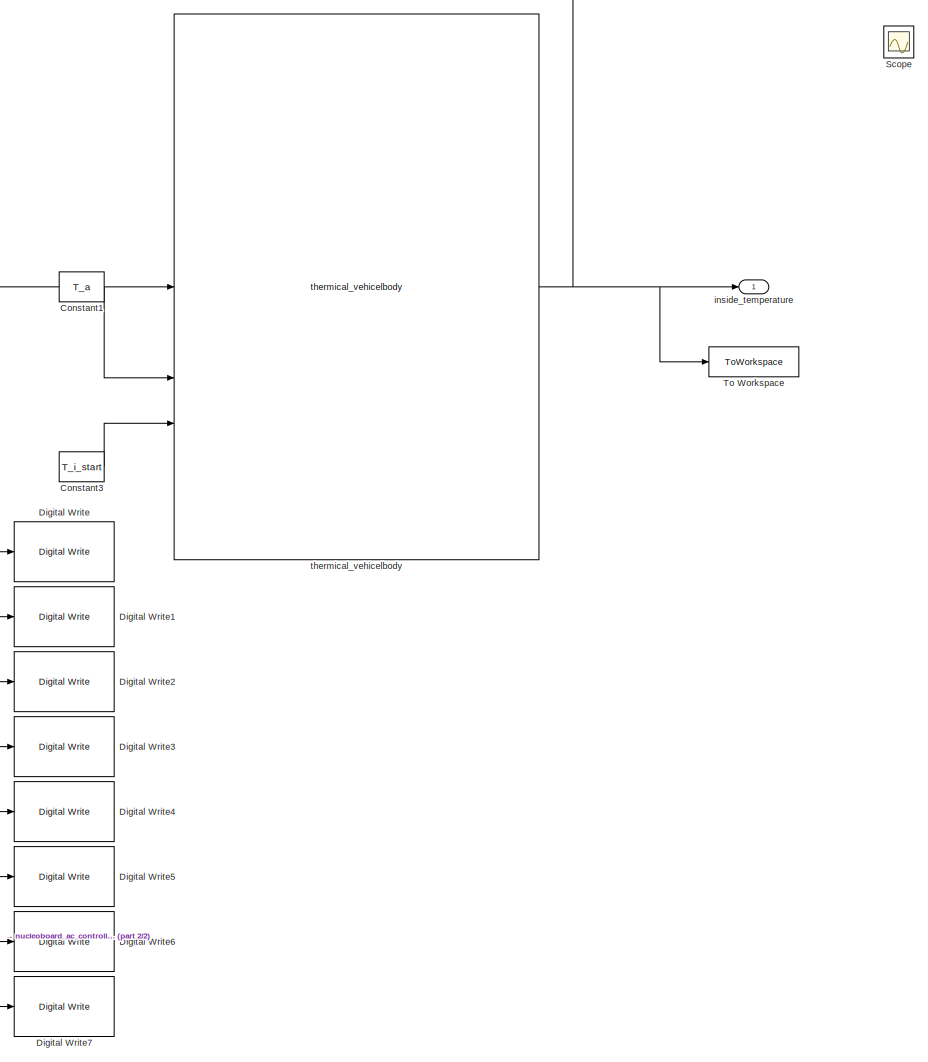
[diagram: root canvas - part 1/2, right side, full height]
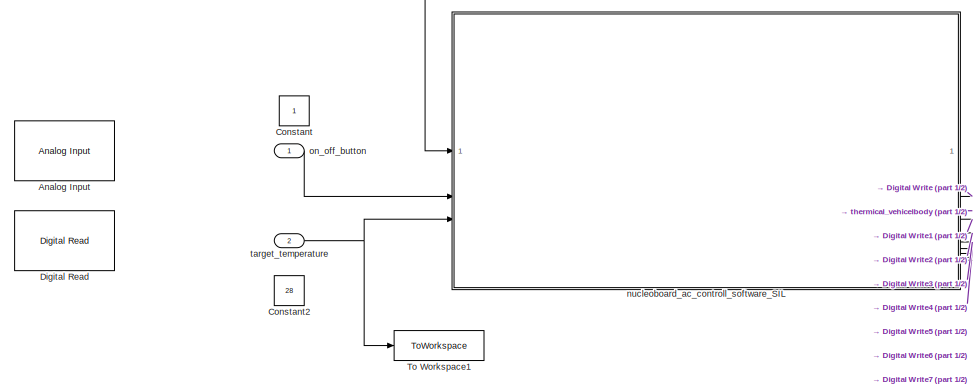
[diagram: root canvas - part 2/2, top left region]
MODEL slx_5eb0355fa3ac
KIND model
CONFIG AbsTol = auto
CONFIG EnableMultiTasking = off
CONFIG FixedStep = auto
CONFIG MaxStep = auto
CONFIG MinStep = auto
CONFIG RelTol = 1e-3
CONFIG SampleTimeConstraint = Unconstrained
CONFIG SolverName = FixedStepAuto
CONFIG StartTime = 0.0
CONFIG StopTime = 10.0
BLOCK [Reference] Analog Input  REF=mbedblockslib/Analog Input
  Commented = on
  LibrarySourceBlock = stmnucleorootlib/Common/Analog Input
  SourceBlock = mbedblockslib/Analog Input
  SourceType = mbed.AnalogInput
BLOCK [Constant] Constant
  Commented = on
  OutDataTypeStr = boolean
BLOCK [Constant] Constant1
  Value = T_a
BLOCK [Constant] Constant2
  Commented = on
  OutDataTypeStr = uint16
  Value = 28
BLOCK [Constant] Constant3
  Value = T_i_start
BLOCK [Reference] Digital Read  REF=mbedblockslib/Digital Read
  Commented = on
  LibrarySourceBlock = stmnucleorootlib/Common/Digital Read
  SourceBlock = mbedblockslib/Digital Read
  SourceType = mbed.DigitalRead
BLOCK [Reference] Digital Write  REF=mbedblockslib/Digital Write
  LibrarySourceBlock = stmnucleorootlib/Common/Digital Write
  SourceBlock = mbedblockslib/Digital Write
  SourceType = mbed.DigitalWrite
BLOCK [Reference] Digital Write1  REF=mbedblockslib/Digital Write
  LibrarySourceBlock = stmnucleorootlib/Common/Digital Write
  SourceBlock = mbedblockslib/Digital Write
  SourceType = mbed.DigitalWrite
BLOCK [Reference] Digital Write2  REF=mbedblockslib/Digital Write
  LibrarySourceBlock = stmnucleorootlib/Common/Digital Write
  SourceBlock = mbedblockslib/Digital Write
  SourceType = mbed.DigitalWrite
BLOCK [Reference] Digital Write3  REF=mbedblockslib/Digital Write
  LibrarySourceBlock = stmnucleorootlib/Common/Digital Write
  SourceBlock = mbedblockslib/Digital Write
  SourceType = mbed.DigitalWrite
BLOCK [Reference] Digital Write4  REF=mbedblockslib/Digital Write
  LibrarySourceBlock = stmnucleorootlib/Common/Digital Write
  SourceBlock = mbedblockslib/Digital Write
  SourceType = mbed.DigitalWrite
BLOCK [Reference] Digital Write5  REF=mbedblockslib/Digital Write
  LibrarySourceBlock = stmnucleorootlib/Common/Digital Write
  SourceBlock = mbedblockslib/Digital Write
  SourceType = mbed.DigitalWrite
BLOCK [Reference] Digital Write6  REF=mbedblockslib/Digital Write
  LibrarySourceBlock = stmnucleorootlib/Common/Digital Write
  SourceBlock = mbedblockslib/Digital Write
  SourceType = mbed.DigitalWrite
BLOCK [Reference] Digital Write7  REF=mbedblockslib/Digital Write
  LibrarySourceBlock = stmnucleorootlib/Common/Digital Write
  SourceBlock = mbedblockslib/Digital Write
  SourceType = mbed.DigitalWrite
BLOCK [Scope] Scope
  Commented = on
  Floating = off
  NumInputPorts = 1
  ScopeSpecificationString = Simulink.scopes.TimeScopeBlockCfg('CurrentConfiguration', extmgr.ConfigurationSet(extmgr.Configuration('Core','General UI',true),extmgr.Configuration('Core','Source UI',true),extmgr.Configuration('Sources','WiredSimulink',true),extmgr.Configuration('Visuals','Time Domain',true,'SerializedDisplays',{struct('MinYLimReal','-1.80843','MaxYLimReal','16.8604','YLabelReal','','MinYLimMag','0.00000','MaxY...<+1397ch>
BLOCK [ToWorkspace] To Workspace
  FixptAsFi = on
  MaxDataPoints = inf
  SampleTime = -1
  SaveFormat = Timeseries
  VariableName = inside_tmp
BLOCK [ToWorkspace] To Workspace1
  FixptAsFi = on
  MaxDataPoints = inf
  SampleTime = -1
  SaveFormat = Timeseries
  VariableName = target_tmp
BLOCK [Outport] inside_temperature
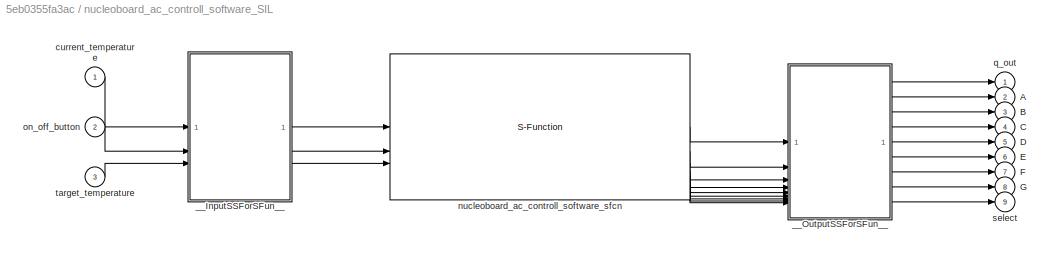
BLOCK [SubSystem] nucleoboard_ac_controll_software_SIL
BLOCK [Outport] nucleoboard_ac_controll_software_SIL/A
  Port = 2
BLOCK [Outport] nucleoboard_ac_controll_software_SIL/B
  Port = 3
BLOCK [Outport] nucleoboard_ac_controll_software_SIL/C
  Port = 4
BLOCK [Outport] nucleoboard_ac_controll_software_SIL/D
  Port = 5
BLOCK [Outport] nucleoboard_ac_controll_software_SIL/E
  Port = 6
BLOCK [Outport] nucleoboard_ac_controll_software_SIL/F
  Port = 7
BLOCK [Outport] nucleoboard_ac_controll_software_SIL/G
  Port = 8
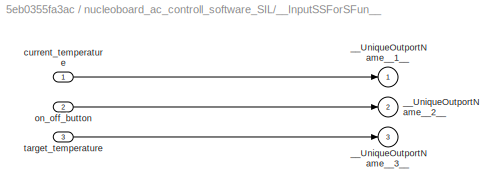
BLOCK [SubSystem] nucleoboard_ac_controll_software_SIL/__InputSSForSFun__
  PermitHierarchicalResolution = ExplicitOnly
BLOCK [Outport] nucleoboard_ac_controll_software_SIL/__InputSSForSFun__/__UniqueOutportName__1__
BLOCK [Outport] nucleoboard_ac_controll_software_SIL/__InputSSForSFun__/__UniqueOutportName__2__
  Port = 2
BLOCK [Outport] nucleoboard_ac_controll_software_SIL/__InputSSForSFun__/__UniqueOutportName__3__
  Port = 3
BLOCK [Inport] nucleoboard_ac_controll_software_SIL/__InputSSForSFun__/current_temperature
BLOCK [Inport] nucleoboard_ac_controll_software_SIL/__InputSSForSFun__/on_off_button
  Port = 2
BLOCK [Inport] nucleoboard_ac_controll_software_SIL/__InputSSForSFun__/target_temperature
  Port = 3
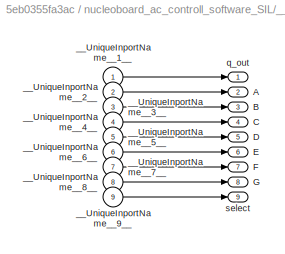
BLOCK [SubSystem] nucleoboard_ac_controll_software_SIL/__OutputSSForSFun__
  PermitHierarchicalResolution = ExplicitOnly
BLOCK [Outport] nucleoboard_ac_controll_software_SIL/__OutputSSForSFun__/A
  Port = 2
BLOCK [Outport] nucleoboard_ac_controll_software_SIL/__OutputSSForSFun__/B
  Port = 3
BLOCK [Outport] nucleoboard_ac_controll_software_SIL/__OutputSSForSFun__/C
  Port = 4
BLOCK [Outport] nucleoboard_ac_controll_software_SIL/__OutputSSForSFun__/D
  Port = 5
BLOCK [Outport] nucleoboard_ac_controll_software_SIL/__OutputSSForSFun__/E
  Port = 6
BLOCK [Outport] nucleoboard_ac_controll_software_SIL/__OutputSSForSFun__/F
  Port = 7
BLOCK [Outport] nucleoboard_ac_controll_software_SIL/__OutputSSForSFun__/G
  Port = 8
BLOCK [Inport] nucleoboard_ac_controll_software_SIL/__OutputSSForSFun__/__UniqueInportName__1__
BLOCK [Inport] nucleoboard_ac_controll_software_SIL/__OutputSSForSFun__/__UniqueInportName__2__
  Port = 2
BLOCK [Inport] nucleoboard_ac_controll_software_SIL/__OutputSSForSFun__/__UniqueInportName__3__
  Port = 3
BLOCK [Inport] nucleoboard_ac_controll_software_SIL/__OutputSSForSFun__/__UniqueInportName__4__
  Port = 4
BLOCK [Inport] nucleoboard_ac_controll_software_SIL/__OutputSSForSFun__/__UniqueInportName__5__
  Port = 5
BLOCK [Inport] nucleoboard_ac_controll_software_SIL/__OutputSSForSFun__/__UniqueInportName__6__
  Port = 6
BLOCK [Inport] nucleoboard_ac_controll_software_SIL/__OutputSSForSFun__/__UniqueInportName__7__
  Port = 7
BLOCK [Inport] nucleoboard_ac_controll_software_SIL/__OutputSSForSFun__/__UniqueInportName__8__
  Port = 8
BLOCK [Inport] nucleoboard_ac_controll_software_SIL/__OutputSSForSFun__/__UniqueInportName__9__
  Port = 9
BLOCK [Outport] nucleoboard_ac_controll_software_SIL/__OutputSSForSFun__/q_out
BLOCK [Outport] nucleoboard_ac_controll_software_SIL/__OutputSSForSFun__/select
  Port = 9
BLOCK [Inport] nucleoboard_ac_controll_software_SIL/current_temperature
BLOCK [S-Function] nucleoboard_ac_controll_software_SIL/nucleoboard_ac_controll_software_sfcn
  CopyFcn = if ~strcmp(get_param(gcb,'Linkstatus'),'none') && ...\n~strcmp(get_param(gcb,'Linkstatus'),'implicit')      \n  set_param(gcb,'LinkStatus','none');                \nend
  EnableBusSupport = off
  FunctionName = nucleoboard_ac_controll_softwar_sf
  SFcnIsStateOwnerBlock = on
  SFcnStateName = DWORK0
  SFunctionDeploymentMode = off
BLOCK [Inport] nucleoboard_ac_controll_software_SIL/on_off_button
  Port = 2
BLOCK [Outport] nucleoboard_ac_controll_software_SIL/q_out
BLOCK [Outport] nucleoboard_ac_controll_software_SIL/select
  Port = 9
BLOCK [Inport] nucleoboard_ac_controll_software_SIL/target_temperature
  Port = 3
BLOCK [Inport] on_off_button
  OutDataTypeStr = boolean
BLOCK [Inport] target_temperature
  Port = 2
BLOCK [Reference] thermical_vehicelbody  REF=thermical_vehicelbody/thermical_vehicelbody  (lib defined in slx_e5d466674b51)
  SourceBlock = thermical_vehicelbody/thermical_vehicelbody
  SourceType = SubSystem
LINE Constant1:1 -> thermical_vehicelbody:2
LINE Constant3:1 -> thermical_vehicelbody:3
LINE nucleoboard_ac_controll_software_SIL/__InputSSForSFun__/current_temperature:1 -> nucleoboard_ac_controll_software_SIL/__InputSSForSFun__/__UniqueOutportName__1__:1
LINE nucleoboard_ac_controll_software_SIL/__InputSSForSFun__/on_off_button:1 -> nucleoboard_ac_controll_software_SIL/__InputSSForSFun__/__UniqueOutportName__2__:1
LINE nucleoboard_ac_controll_software_SIL/__InputSSForSFun__/target_temperature:1 -> nucleoboard_ac_controll_software_SIL/__InputSSForSFun__/__UniqueOutportName__3__:1
LINE nucleoboard_ac_controll_software_SIL/__InputSSForSFun__:1 -> nucleoboard_ac_controll_software_SIL/nucleoboard_ac_controll_software_sfcn:1
LINE nucleoboard_ac_controll_software_SIL/__InputSSForSFun__:2 -> nucleoboard_ac_controll_software_SIL/nucleoboard_ac_controll_software_sfcn:2
LINE nucleoboard_ac_controll_software_SIL/__InputSSForSFun__:3 -> nucleoboard_ac_controll_software_SIL/nucleoboard_ac_controll_software_sfcn:3
LINE nucleoboard_ac_controll_software_SIL/__OutputSSForSFun__/__UniqueInportName__1__:1 -> nucleoboard_ac_controll_software_SIL/__OutputSSForSFun__/q_out:1
LINE nucleoboard_ac_controll_software_SIL/__OutputSSForSFun__/__UniqueInportName__2__:1 -> nucleoboard_ac_controll_software_SIL/__OutputSSForSFun__/A:1
LINE nucleoboard_ac_controll_software_SIL/__OutputSSForSFun__/__UniqueInportName__3__:1 -> nucleoboard_ac_controll_software_SIL/__OutputSSForSFun__/B:1
LINE nucleoboard_ac_controll_software_SIL/__OutputSSForSFun__/__UniqueInportName__4__:1 -> nucleoboard_ac_controll_software_SIL/__OutputSSForSFun__/C:1
LINE nucleoboard_ac_controll_software_SIL/__OutputSSForSFun__/__UniqueInportName__5__:1 -> nucleoboard_ac_controll_software_SIL/__OutputSSForSFun__/D:1
LINE nucleoboard_ac_controll_software_SIL/__OutputSSForSFun__/__UniqueInportName__6__:1 -> nucleoboard_ac_controll_software_SIL/__OutputSSForSFun__/E:1
LINE nucleoboard_ac_controll_software_SIL/__OutputSSForSFun__/__UniqueInportName__7__:1 -> nucleoboard_ac_controll_software_SIL/__OutputSSForSFun__/F:1
LINE nucleoboard_ac_controll_software_SIL/__OutputSSForSFun__/__UniqueInportName__8__:1 -> nucleoboard_ac_controll_software_SIL/__OutputSSForSFun__/G:1
LINE nucleoboard_ac_controll_software_SIL/__OutputSSForSFun__/__UniqueInportName__9__:1 -> nucleoboard_ac_controll_software_SIL/__OutputSSForSFun__/select:1
LINE nucleoboard_ac_controll_software_SIL/__OutputSSForSFun__:1 -> nucleoboard_ac_controll_software_SIL/q_out:1
LINE nucleoboard_ac_controll_software_SIL/__OutputSSForSFun__:2 -> nucleoboard_ac_controll_software_SIL/A:1
LINE nucleoboard_ac_controll_software_SIL/__OutputSSForSFun__:3 -> nucleoboard_ac_controll_software_SIL/B:1
LINE nucleoboard_ac_controll_software_SIL/__OutputSSForSFun__:4 -> nucleoboard_ac_controll_software_SIL/C:1
LINE nucleoboard_ac_controll_software_SIL/__OutputSSForSFun__:5 -> nucleoboard_ac_controll_software_SIL/D:1
LINE nucleoboard_ac_controll_software_SIL/__OutputSSForSFun__:6 -> nucleoboard_ac_controll_software_SIL/E:1
LINE nucleoboard_ac_controll_software_SIL/__OutputSSForSFun__:7 -> nucleoboard_ac_controll_software_SIL/F:1
LINE nucleoboard_ac_controll_software_SIL/__OutputSSForSFun__:8 -> nucleoboard_ac_controll_software_SIL/G:1
LINE nucleoboard_ac_controll_software_SIL/__OutputSSForSFun__:9 -> nucleoboard_ac_controll_software_SIL/select:1
LINE nucleoboard_ac_controll_software_SIL/current_temperature:1 -> nucleoboard_ac_controll_software_SIL/__InputSSForSFun__:1
LINE nucleoboard_ac_controll_software_SIL/nucleoboard_ac_controll_software_sfcn:1 -> nucleoboard_ac_controll_software_SIL/__OutputSSForSFun__:1
LINE nucleoboard_ac_controll_software_SIL/nucleoboard_ac_controll_software_sfcn:2 -> nucleoboard_ac_controll_software_SIL/__OutputSSForSFun__:2
LINE nucleoboard_ac_controll_software_SIL/nucleoboard_ac_controll_software_sfcn:3 -> nucleoboard_ac_controll_software_SIL/__OutputSSForSFun__:3
LINE nucleoboard_ac_controll_software_SIL/nucleoboard_ac_controll_software_sfcn:4 -> nucleoboard_ac_controll_software_SIL/__OutputSSForSFun__:4
LINE nucleoboard_ac_controll_software_SIL/nucleoboard_ac_controll_software_sfcn:5 -> nucleoboard_ac_controll_software_SIL/__OutputSSForSFun__:5
LINE nucleoboard_ac_controll_software_SIL/nucleoboard_ac_controll_software_sfcn:6 -> nucleoboard_ac_controll_software_SIL/__OutputSSForSFun__:6
LINE nucleoboard_ac_controll_software_SIL/nucleoboard_ac_controll_software_sfcn:7 -> nucleoboard_ac_controll_software_SIL/__OutputSSForSFun__:7
LINE nucleoboard_ac_controll_software_SIL/nucleoboard_ac_controll_software_sfcn:8 -> nucleoboard_ac_controll_software_SIL/__OutputSSForSFun__:8
LINE nucleoboard_ac_controll_software_SIL/nucleoboard_ac_controll_software_sfcn:9 -> nucleoboard_ac_controll_software_SIL/__OutputSSForSFun__:9
LINE nucleoboard_ac_controll_software_SIL/on_off_button:1 -> nucleoboard_ac_controll_software_SIL/__InputSSForSFun__:2
LINE nucleoboard_ac_controll_software_SIL/target_temperature:1 -> nucleoboard_ac_controll_software_SIL/__InputSSForSFun__:3
LINE nucleoboard_ac_controll_software_SIL:1 -> thermical_vehicelbody:1
LINE nucleoboard_ac_controll_software_SIL:2 -> Digital Write:1
LINE nucleoboard_ac_controll_software_SIL:3 -> Digital Write1:1
LINE nucleoboard_ac_controll_software_SIL:4 -> Digital Write2:1
LINE nucleoboard_ac_controll_software_SIL:5 -> Digital Write3:1
LINE nucleoboard_ac_controll_software_SIL:6 -> Digital Write4:1
LINE nucleoboard_ac_controll_software_SIL:7 -> Digital Write5:1
LINE nucleoboard_ac_controll_software_SIL:8 -> Digital Write6:1
LINE nucleoboard_ac_controll_software_SIL:9 -> Digital Write7:1
LINE on_off_button:1 -> nucleoboard_ac_controll_software_SIL:2
NET target_temperature:1 -> To Workspace1:1, nucleoboard_ac_controll_software_SIL:3
NET thermical_vehicelbody:1 -> To Workspace:1, inside_temperature:1, nucleoboard_ac_controll_software_SIL:1
note: NET lines group one-source signal fan-out (src -> all destinations, sorted); 1:1 wires keep LINE
